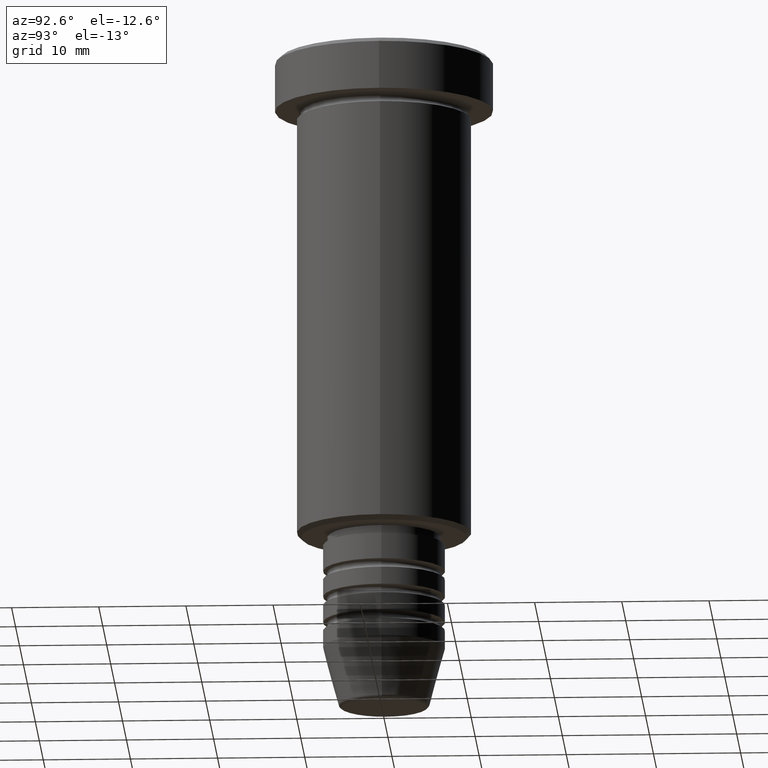
[diagram: clean part render]
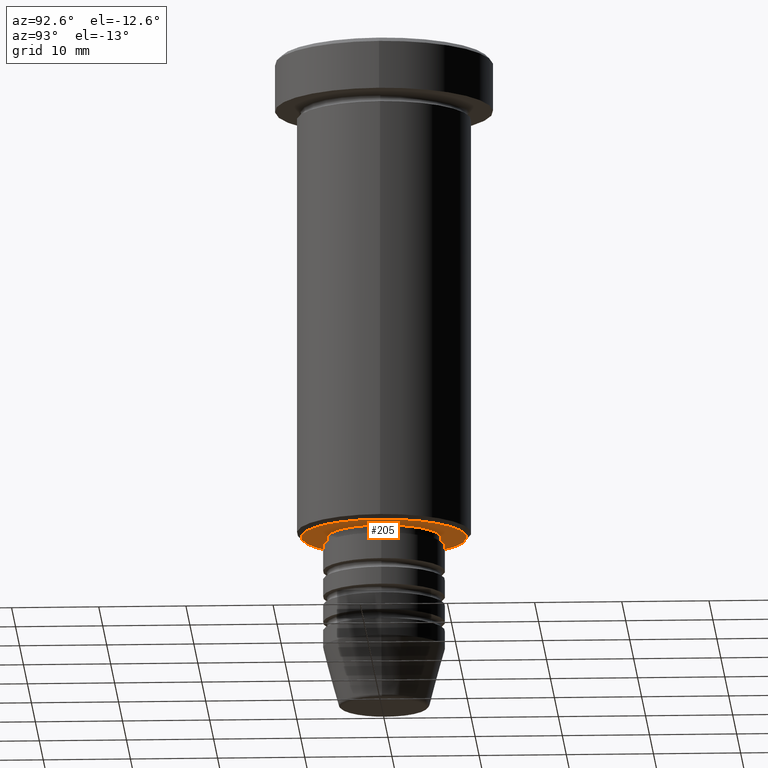
[diagram: same view with one face highlighted and labeled with its STEP entity id]
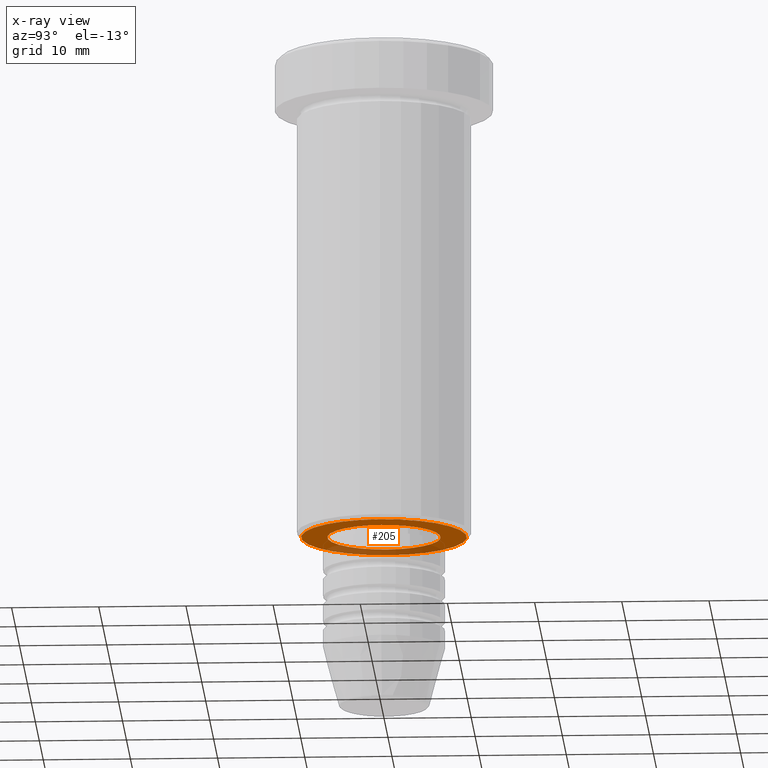
[diagram: x-ray of the same camera — body ghosted, the highlighted face saturated]
A machine part, auxiliary view. The second image highlights one B-rep face of the part: STEP entity #205.
The next image is the same camera in x-ray: the body ghosted, the highlighted face saturated — about 27% of this face is hidden behind the body in this view.
In plain terms, the highlighted planar face has unit normal (0, 0, -1).
Its self-contained STEP definition (entity closure, byte-faithful):
#17 = EDGE_CURVE ( 'NONE', #212, #1165, #424, .T. ) ;
#30 = ORIENTED_EDGE ( 'NONE', *, *, #17, .T. ) ;
#101 = CARTESIAN_POINT ( 'NONE',  ( -9.500000000000001776, 1.194030629168669469E-15, -56.00000000000000711 ) ) ;
#121 = VERTEX_POINT ( 'NONE', #101 ) ;
#133 = DIRECTION ( 'NONE',  ( 0.000000000000000000, 0.000000000000000000, -1.000000000000000000 ) ) ;
#154 = CARTESIAN_POINT ( 'NONE',  ( 9.500000000000001776, 0.000000000000000000, -56.00000000000000711 ) ) ;
#167 = DIRECTION ( 'NONE',  ( -1.000000000000000000, 0.000000000000000000, 0.000000000000000000 ) ) ;
#205 = ADVANCED_FACE ( 'NONE', ( #244, #497 ), #410, .T. ) ;
#212 = VERTEX_POINT ( 'NONE', #863 ) ;
#244 = FACE_OUTER_BOUND ( 'NONE', #342, .T. ) ;
#246 = ORIENTED_EDGE ( 'NONE', *, *, #756, .T. ) ;
#255 = AXIS2_PLACEMENT_3D ( 'NONE', #973, #1064, #519 ) ;
#275 = CIRCLE ( 'NONE', #255, 6.500000000000000000 ) ;
#296 = AXIS2_PLACEMENT_3D ( 'NONE', #657, #133, #403 ) ;
#301 = EDGE_CURVE ( 'NONE', #1165, #212, #275, .T. ) ;
#337 = AXIS2_PLACEMENT_3D ( 'NONE', #715, #373, #167 ) ;
#342 = EDGE_LOOP ( 'NONE', ( #246, #1075 ) ) ;
#356 = CIRCLE ( 'NONE', #337, 9.500000000000001776 ) ;
#373 = DIRECTION ( 'NONE',  ( 0.000000000000000000, 0.000000000000000000, -1.000000000000000000 ) ) ;
#375 = CARTESIAN_POINT ( 'NONE',  ( 0.000000000000000000, 0.000000000000000000, -56.00000000000000711 ) ) ;
#403 = DIRECTION ( 'NONE',  ( -1.000000000000000000, 0.000000000000000000, 0.000000000000000000 ) ) ;
#410 = PLANE ( 'NONE',  #1035 ) ;
#424 = CIRCLE ( 'NONE', #1149, 6.500000000000000000 ) ;
#497 = FACE_BOUND ( 'NONE', #649, .T. ) ;
#519 = DIRECTION ( 'NONE',  ( 1.000000000000000000, 0.000000000000000000, 0.000000000000000000 ) ) ;
#550 = ORIENTED_EDGE ( 'NONE', *, *, #301, .T. ) ;
#554 = VERTEX_POINT ( 'NONE', #154 ) ;
#649 = EDGE_LOOP ( 'NONE', ( #550, #30 ) ) ;
#657 = CARTESIAN_POINT ( 'NONE',  ( 0.000000000000000000, 0.000000000000000000, -56.00000000000000711 ) ) ;
#672 = CIRCLE ( 'NONE', #296, 9.500000000000001776 ) ;
#675 = EDGE_CURVE ( 'NONE', #121, #554, #356, .T. ) ;
#715 = CARTESIAN_POINT ( 'NONE',  ( 0.000000000000000000, 0.000000000000000000, -56.00000000000000711 ) ) ;
#729 = DIRECTION ( 'NONE',  ( -0.000000000000000000, -0.000000000000000000, 1.000000000000000000 ) ) ;
#756 = EDGE_CURVE ( 'NONE', #554, #121, #672, .T. ) ;
#848 = CARTESIAN_POINT ( 'NONE',  ( 0.000000000000000000, 10.00000000000000000, -56.00000000000000711 ) ) ;
#853 = DIRECTION ( 'NONE',  ( -1.000000000000000000, 0.000000000000000000, -0.000000000000000000 ) ) ;
#863 = CARTESIAN_POINT ( 'NONE',  ( -6.500000000000000000, 7.960204194457795477E-16, -56.00000000000000711 ) ) ;
#896 = DIRECTION ( 'NONE',  ( 1.000000000000000000, 0.000000000000000000, 0.000000000000000000 ) ) ;
#899 = CARTESIAN_POINT ( 'NONE',  ( 6.500000000000000000, 0.000000000000000000, -56.00000000000000711 ) ) ;
#973 = CARTESIAN_POINT ( 'NONE',  ( 0.000000000000000000, 0.000000000000000000, -56.00000000000000711 ) ) ;
#1035 = AXIS2_PLACEMENT_3D ( 'NONE', #848, #1129, #853 ) ;
#1064 = DIRECTION ( 'NONE',  ( -0.000000000000000000, -0.000000000000000000, 1.000000000000000000 ) ) ;
#1075 = ORIENTED_EDGE ( 'NONE', *, *, #675, .T. ) ;
#1129 = DIRECTION ( 'NONE',  ( 0.000000000000000000, 0.000000000000000000, -1.000000000000000000 ) ) ;
#1149 = AXIS2_PLACEMENT_3D ( 'NONE', #375, #729, #896 ) ;
#1165 = VERTEX_POINT ( 'NONE', #899 ) ;